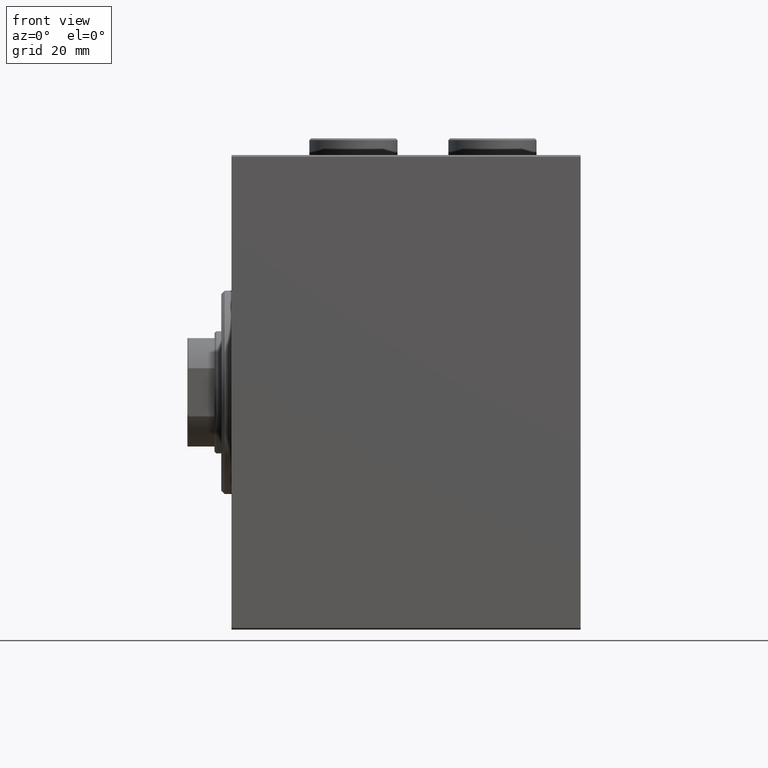
[diagram: clean part render]
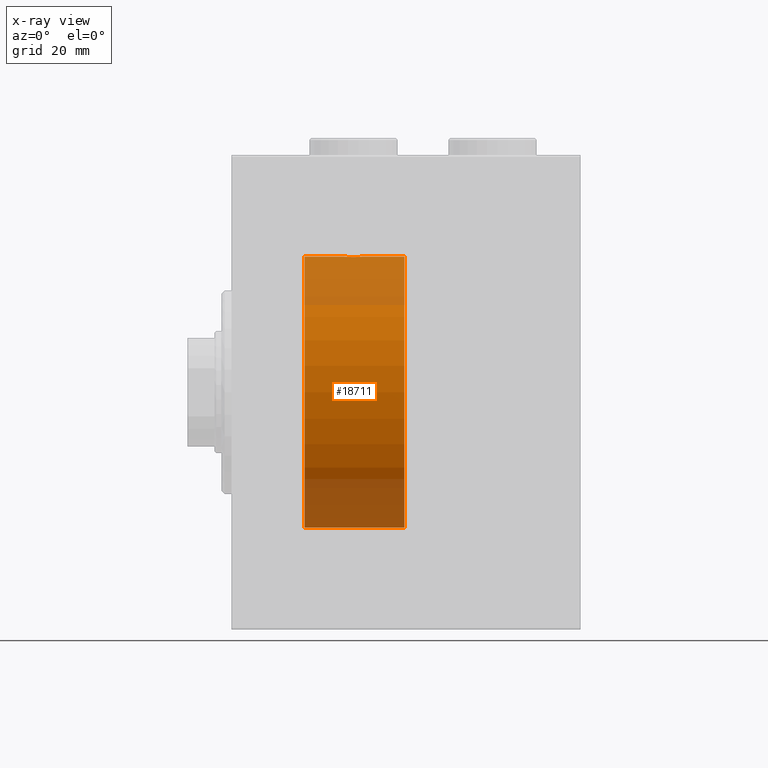
[diagram: x-ray — body ghosted, one internal face saturated and labeled with its STEP entity id]
A machine part, front view, then the same camera in x-ray: the body is ghosted and one INTERNAL B-rep face — a face not visible from any outside direction — is saturated and labeled: STEP entity #18711.
In plain terms, the highlighted cylindrical surface (partial cylindrical patch) has radius 40 mm, axis along (-1, -0, -0).
Its self-contained STEP definition (entity closure, byte-faithful):
#464 = CARTESIAN_POINT ( 'NONE',  ( 37.50443082913466242, -2.602909538701748016, -39.91537030566259148 ) ) ;
#1314 = CARTESIAN_POINT ( 'NONE',  ( 38.26097616994740491, -1.981471132463162643, -39.95113231465139592 ) ) ;
#1762 = CARTESIAN_POINT ( 'NONE',  ( 38.99999999999999289, -0.1957844162750510819, -40.00000000000000711 ) ) ;
#1984 = CARTESIAN_POINT ( 'NONE',  ( 36.77869523415743913, -2.903766417398228938, -39.89448096967571900 ) ) ;
#2025 = CARTESIAN_POINT ( 'NONE',  ( 36.77455678826340346, -2.904869018727227470, 39.89440043036668726 ) ) ;
#2202 = CARTESIAN_POINT ( 'NONE',  ( 34.01863720485770415, -2.261082456166700005, -39.93628274425758917 ) ) ;
#2249 = CARTESIAN_POINT ( 'NONE',  ( 35.03061658105534093, -2.845855236045346626, 39.89870693240651178 ) ) ;
#2471 = CARTESIAN_POINT ( 'NONE',  ( 35.22130476584258219, -2.903766417398241373, 39.89448096967571189 ) ) ;
#2582 = VERTEX_POINT ( 'NONE', #28784 ) ;
#2657 = CARTESIAN_POINT ( 'NONE',  ( 51.00000000000000711, 0.000000000000000000, 40.00000000000000000 ) ) ;
#2660 = CARTESIAN_POINT ( 'NONE',  ( 33.07973825008353685, -0.7903958539027382546, -39.99381900068937767 ) ) ;
#2885 = CARTESIAN_POINT ( 'NONE',  ( 34.49911531595966352, -2.604941918888306507, -39.91523680494982784 ) ) ;
#2931 = CARTESIAN_POINT ( 'NONE',  ( 36.39109692509332916, -2.980812880639903906, 39.88879797994688658 ) ) ;
#2981 = AXIS2_PLACEMENT_3D ( 'NONE', #45157, #10168, #17310 ) ;
#3366 = VECTOR ( 'NONE', #22889, 1000.000000000000000 ) ;
#4565 = CARTESIAN_POINT ( 'NONE',  ( 33.30278659419118981, -1.327859336864149364, 39.97836169682016561 ) ) ;
#4980 = CARTESIAN_POINT ( 'NONE',  ( 38.69721340580881730, -1.327859336864144035, -39.97836169682019403 ) ) ;
#5428 = CARTESIAN_POINT ( 'NONE',  ( 37.83044822822401443, -2.384933850258100119, -39.92898715513241115 ) ) ;
#5478 = CARTESIAN_POINT ( 'NONE',  ( 38.38251680911463382, -1.833695109615725904, 39.95828327492363741 ) ) ;
#5693 = CARTESIAN_POINT ( 'NONE',  ( 37.82690184632409824, -2.387636253591825408, 39.92882473497732576 ) ) ;
#6346 = CARTESIAN_POINT ( 'NONE',  ( 33.74170329679496660, -1.984537326394300250, -39.95097977400577349 ) ) ;
#6649 = EDGE_CURVE ( 'NONE', #13104, #43262, #32824, .T. ) ;
#7179 = CYLINDRICAL_SURFACE ( 'NONE', #2981, 40.00000000000000000 ) ;
#7967 = ORIENTED_EDGE ( 'NONE', *, *, #6649, .T. ) ;
#8018 = CARTESIAN_POINT ( 'NONE',  ( 33.01898122889073761, -0.3904143323715978386, 39.99856256910221219 ) ) ;
#8127 = LINE ( 'NONE', #11819, #36804 ) ;
#9157 = CARTESIAN_POINT ( 'NONE',  ( 39.00000000000000000, -0.3964922677423686759, 40.00000000000000000 ) ) ;
#9159 = CARTESIAN_POINT ( 'NONE',  ( 51.00000000000000711, 0.000000000000000000, 0.000000000000000000 ) ) ;
#10168 = DIRECTION ( 'NONE',  ( -1.000000000000000000, -0.000000000000000000, -0.000000000000000000 ) ) ;
#10630 = FACE_OUTER_BOUND ( 'NONE', #43345, .T. ) ;
#11626 = LINE ( 'NONE', #33245, #32344 ) ;
#11819 = CARTESIAN_POINT ( 'NONE',  ( 51.00000000000000711, 0.000000000000000000, 40.00000000000000000 ) ) ;
#11900 = EDGE_CURVE ( 'NONE', #13340, #31740, #36004, .T. ) ;
#11930 = DIRECTION ( 'NONE',  ( 0.000000000000000000, 0.000000000000000000, 1.000000000000000000 ) ) ;
#12069 = CARTESIAN_POINT ( 'NONE',  ( 51.00000000000000711, 0.000000000000000000, 40.00000000000000000 ) ) ;
#12375 = DIRECTION ( 'NONE',  ( -1.000000000000000000, 0.000000000000000000, 0.000000000000000000 ) ) ;
#12550 = CARTESIAN_POINT ( 'NONE',  ( 38.84665273013138176, -0.9668189122103333366, -39.98872185468385254 ) ) ;
#12600 = CARTESIAN_POINT ( 'NONE',  ( 21.60000000000000142, 4.898587196589413026E-15, -40.00000000000000000 ) ) ;
#12775 = CARTESIAN_POINT ( 'NONE',  ( 34.17309815367588754, -2.387636253591812974, -39.92882473497732576 ) ) ;
#13050 = CARTESIAN_POINT ( 'NONE',  ( 38.60188728128492386, -1.506322235190791226, 39.97196309111975410 ) ) ;
#13104 = VERTEX_POINT ( 'NONE', #35328 ) ;
#13262 = CARTESIAN_POINT ( 'NONE',  ( 39.00000000000000000, -4.750840494920854782E-16, 40.00000000000000000 ) ) ;
#13286 = CARTESIAN_POINT ( 'NONE',  ( 37.98136279514228875, -2.261082456166712440, 39.93628274425758207 ) ) ;
#13340 = VERTEX_POINT ( 'NONE', #39915 ) ;
#14030 = VERTEX_POINT ( 'NONE', #23896 ) ;
#14920 = CARTESIAN_POINT ( 'NONE',  ( 32.99999999999998579, -0.1957844162750546346, 39.99999999999999289 ) ) ;
#15334 = CARTESIAN_POINT ( 'NONE',  ( 35.80439468926913804, -3.000157693440631324, -39.88732948994960026 ) ) ;
#16008 = CARTESIAN_POINT ( 'NONE',  ( 36.39522483453576029, -2.980272303779541332, -39.88883864243169342 ) ) ;
#16511 = CARTESIAN_POINT ( 'NONE',  ( 36.19560531073085485, -3.000157693440645090, 39.88732948994960026 ) ) ;
#16589 = CARTESIAN_POINT ( 'NONE',  ( 51.00000000000000711, 4.898587196589413026E-15, -40.00000000000000000 ) ) ;
#16738 = CARTESIAN_POINT ( 'NONE',  ( 33.73902383005257377, -1.981471132463168638, 39.95113231465138881 ) ) ;
#16966 = CARTESIAN_POINT ( 'NONE',  ( 37.32853644746295885, -2.696981015661930936, 39.90904630908467254 ) ) ;
#17310 = DIRECTION ( 'NONE',  ( 0.000000000000000000, 0.000000000000000000, 1.000000000000000000 ) ) ;
#17361 = EDGE_CURVE ( 'NONE', #13340, #2582, #11626, .T. ) ;
#17442 = ORIENTED_EDGE ( 'NONE', *, *, #17361, .T. ) ;
#18107 = CIRCLE ( 'NONE', #40696, 40.00000000000000000 ) ;
#18483 = EDGE_CURVE ( 'NONE', #31740, #43262, #8127, .T. ) ;
#18604 = CARTESIAN_POINT ( 'NONE',  ( 33.39566400087915099, -1.502129635934003948, 39.97212271185185983 ) ) ;
#18711 = ADVANCED_FACE ( 'NONE', ( #10630 ), #7179, .F. ) ;
#18972 = CARTESIAN_POINT ( 'NONE',  ( 32.99999999999999289, 4.605585004310627937E-15, -40.00000000000000000 ) ) ;
#19021 = CARTESIAN_POINT ( 'NONE',  ( 38.98101877110926239, -0.3904143323715931757, -39.99856256910221219 ) ) ;
#19520 = CARTESIAN_POINT ( 'NONE',  ( 38.69537007708435539, -1.331594428131646302, 39.97823692017208685 ) ) ;
#20426 = CARTESIAN_POINT ( 'NONE',  ( 34.01538552187719233, -2.258217541132904849, 39.93644519243652979 ) ) ;
#20670 = DIRECTION ( 'NONE',  ( -1.000000000000000000, 0.000000000000000000, 0.000000000000000000 ) ) ;
#21721 = ORIENTED_EDGE ( 'NONE', *, *, #11900, .F. ) ;
#22068 = CARTESIAN_POINT ( 'NONE',  ( 33.09574826348647036, -0.7773146824711030245, 39.99291453282344833 ) ) ;
#22499 = CARTESIAN_POINT ( 'NONE',  ( 39.00000000000000000, 4.898587181754971267E-15, -40.00000000000000000 ) ) ;
#22889 = DIRECTION ( 'NONE',  ( -1.000000000000000000, -0.000000000000000000, -0.000000000000000000 ) ) ;
#22934 = CARTESIAN_POINT ( 'NONE',  ( 38.60433599912083480, -1.502129635934000396, -39.97212271185185273 ) ) ;
#23154 = CARTESIAN_POINT ( 'NONE',  ( 36.96938341894465907, -2.845855236045336856, -39.89870693240651178 ) ) ;
#23841 = CARTESIAN_POINT ( 'NONE',  ( 35.03510674146484405, -2.847401743820449305, -39.89859630624607689 ) ) ;
#23896 = CARTESIAN_POINT ( 'NONE',  ( 21.60000000000000142, 0.000000000000000000, 40.00000000000000000 ) ) ;
#25660 = DIRECTION ( 'NONE',  ( -1.000000000000000000, -0.000000000000000000, -0.000000000000000000 ) ) ;
#25848 = DIRECTION ( 'NONE',  ( -1.000000000000000000, -0.000000000000000000, -0.000000000000000000 ) ) ;
#26629 = CARTESIAN_POINT ( 'NONE',  ( 21.60000000000000142, 0.000000000000000000, 0.000000000000000000 ) ) ;
#27323 = CARTESIAN_POINT ( 'NONE',  ( 39.00000000000000000, -4.750840494920854782E-16, 40.00000000000000000 ) ) ;
#28008 = EDGE_CURVE ( 'NONE', #2582, #35648, #39237, .T. ) ;
#28784 = CARTESIAN_POINT ( 'NONE',  ( 39.00000000000000000, 4.898587181754971267E-15, -40.00000000000000000 ) ) ;
#29355 = ORIENTED_EDGE ( 'NONE', *, *, #35502, .F. ) ;
#29554 = EDGE_CURVE ( 'NONE', #35648, #30727, #34080, .T. ) ;
#30043 = CARTESIAN_POINT ( 'NONE',  ( 36.20041286019198168, -2.999840380514735116, -39.88735335562824957 ) ) ;
#30090 = CARTESIAN_POINT ( 'NONE',  ( 38.92026174991647736, -0.7903958539027412522, 39.99381900068937057 ) ) ;
#30502 = CARTESIAN_POINT ( 'NONE',  ( 33.61748319088535908, -1.833695109615714802, -39.95828327492363741 ) ) ;
#30549 = CARTESIAN_POINT ( 'NONE',  ( 35.79958713980801832, -2.999840380514748883, 39.88735335562824957 ) ) ;
#30727 = VERTEX_POINT ( 'NONE', #12600 ) ;
#30774 = CARTESIAN_POINT ( 'NONE',  ( 34.49556917086534469, -2.602909538701760450, 39.91537030566259148 ) ) ;
#30958 = CARTESIAN_POINT ( 'NONE',  ( 34.67146355253704826, -2.696981015661917613, -39.90904630908468675 ) ) ;
#30999 = CARTESIAN_POINT ( 'NONE',  ( 33.61492399084645655, -1.830402106103517834, 39.95843610133493229 ) ) ;
#31477 = ORIENTED_EDGE ( 'NONE', *, *, #28008, .T. ) ;
#31740 = VERTEX_POINT ( 'NONE', #2657 ) ;
#31861 = ORIENTED_EDGE ( 'NONE', *, *, #18483, .F. ) ;
#32344 = VECTOR ( 'NONE', #25660, 1000.000000000000000 ) ;
#32824 = B_SPLINE_CURVE_WITH_KNOTS ( 'NONE', 3,
 ( #40471, #14920, #8018, #22068, #36107, #4565, #18604, #30999, #16738, #20426, #41377, #30774, #34457, #2249, #2471, #37696, #30549, #16511, #2931, #2025, #44590, #16966, #45048, #5693, #13286, #44827, #5478, #13050, #19520, #30090, #9157, #27323 ),
 .UNSPECIFIED., .F., .F.,
 ( 4, 2, 2, 2, 2, 2, 2, 2, 2, 2, 2, 2, 2, 2, 2, 4 ),
 ( 0.009382660366305094896, 0.009968941372944132434, 0.01055522237958316824, 0.01114150338622220404, 0.01172778439286124158, 0.01231406539950027912, 0.01290034640613931492, 0.01348662741277835073, 0.01407290841941738826, 0.01465918942605642580, 0.01524547043269546161, 0.01583175143933449741, 0.01641803244597353495, 0.01700431345261257249, 0.01759059445925161003, 0.01876315647252968163 ),
 .UNSPECIFIED. ) ;
#33245 = CARTESIAN_POINT ( 'NONE',  ( 51.00000000000000711, 4.898587196589413026E-15, -40.00000000000000000 ) ) ;
#33507 = CARTESIAN_POINT ( 'NONE',  ( 37.33224268865864559, -2.695129988695729839, -39.90917164320280364 ) ) ;
#34080 = LINE ( 'NONE', #16589, #42136 ) ;
#34457 = CARTESIAN_POINT ( 'NONE',  ( 34.66775731134134730, -2.695129988695740053, 39.90917164320281785 ) ) ;
#35328 = CARTESIAN_POINT ( 'NONE',  ( 32.99999999999999289, -1.483452932268112700E-23, 40.00000000000000000 ) ) ;
#35502 = EDGE_CURVE ( 'NONE', #13104, #14030, #36015, .T. ) ;
#35648 = VERTEX_POINT ( 'NONE', #18972 ) ;
#35675 = CARTESIAN_POINT ( 'NONE',  ( 35.22544321173658943, -2.904869018727217700, -39.89440043036668726 ) ) ;
#36004 = CIRCLE ( 'NONE', #38222, 40.00000000000000000 ) ;
#36015 = LINE ( 'NONE', #12069, #3366 ) ;
#36107 = CARTESIAN_POINT ( 'NONE',  ( 33.15334726986859692, -0.9668189122103379995, 39.98872185468384544 ) ) ;
#36804 = VECTOR ( 'NONE', #25848, 1000.000000000000000 ) ;
#36968 = CARTESIAN_POINT ( 'NONE',  ( 38.38507600915353635, -1.830402106103512505, -39.95843610133493229 ) ) ;
#37562 = ORIENTED_EDGE ( 'NONE', *, *, #38452, .T. ) ;
#37648 = CARTESIAN_POINT ( 'NONE',  ( 32.99999999999999289, 4.605585004310627937E-15, -40.00000000000000000 ) ) ;
#37696 = CARTESIAN_POINT ( 'NONE',  ( 35.60477516546423260, -2.980272303779554210, 39.88883864243167920 ) ) ;
#37884 = CARTESIAN_POINT ( 'NONE',  ( 33.30462992291564461, -1.331594428131640528, -39.97823692017208685 ) ) ;
#38222 = AXIS2_PLACEMENT_3D ( 'NONE', #9159, #20670, #44829 ) ;
#38452 = EDGE_CURVE ( 'NONE', #30727, #14030, #18107, .T. ) ;
#39237 = B_SPLINE_CURVE_WITH_KNOTS ( 'NONE', 3,
 ( #22499, #1762, #19021, #44094, #12550, #4980, #22934, #36968, #1314, #40641, #5428, #464, #33507, #23154, #1984, #16008, #30043, #15334, #42570, #35675, #23841, #30958, #2885, #12775, #2202, #6346, #30502, #41100, #37884, #2660, #41331, #37648 ),
 .UNSPECIFIED., .F., .F.,
 ( 4, 2, 2, 2, 2, 2, 2, 2, 2, 2, 2, 2, 2, 2, 2, 4 ),
 ( 0.009382660366305110508, 0.009968941372944146312, 0.01055522237958318212, 0.01114150338622221792, 0.01172778439286125372, 0.01231406539950028953, 0.01290034640613932533, 0.01348662741277836113, 0.01407290841941739694, 0.01465918942605643274, 0.01524547043269546855, 0.01583175143933450435, 0.01641803244597354189, 0.01700431345261257596, 0.01759059445925161003, 0.01876315647252968163 ),
 .UNSPECIFIED. ) ;
#39915 = CARTESIAN_POINT ( 'NONE',  ( 51.00000000000000711, 4.898587196589413026E-15, -40.00000000000000000 ) ) ;
#40471 = CARTESIAN_POINT ( 'NONE',  ( 32.99999999999999289, -1.483452932268112700E-23, 40.00000000000000000 ) ) ;
#40641 = CARTESIAN_POINT ( 'NONE',  ( 37.98461447812278635, -2.258217541132897743, -39.93644519243654400 ) ) ;
#40696 = AXIS2_PLACEMENT_3D ( 'NONE', #26629, #12375, #11930 ) ;
#41100 = CARTESIAN_POINT ( 'NONE',  ( 33.39811271871507614, -1.506322235190781456, -39.97196309111974699 ) ) ;
#41331 = CARTESIAN_POINT ( 'NONE',  ( 32.99999999999998579, -0.3964922677423637909, -39.99999999999998579 ) ) ;
#41377 = CARTESIAN_POINT ( 'NONE',  ( 34.16955177177597847, -2.384933850258112553, 39.92898715513240404 ) ) ;
#42136 = VECTOR ( 'NONE', #44665, 1000.000000000000000 ) ;
#42570 = CARTESIAN_POINT ( 'NONE',  ( 35.60890307490667794, -2.980812880639892359, -39.88879797994688658 ) ) ;
#43262 = VERTEX_POINT ( 'NONE', #13262 ) ;
#43345 = EDGE_LOOP ( 'NONE', ( #21721, #17442, #31477, #45073, #37562, #29355, #7967, #31861 ) ) ;
#44094 = CARTESIAN_POINT ( 'NONE',  ( 38.90425173651351543, -0.7773146824710984726, -39.99291453282344122 ) ) ;
#44590 = CARTESIAN_POINT ( 'NONE',  ( 36.96489325853514885, -2.847401743820463516, 39.89859630624608400 ) ) ;
#44665 = DIRECTION ( 'NONE',  ( -1.000000000000000000, -0.000000000000000000, -0.000000000000000000 ) ) ;
#44827 = CARTESIAN_POINT ( 'NONE',  ( 38.25829670320502629, -1.984537326394312018, 39.95097977400578060 ) ) ;
#44829 = DIRECTION ( 'NONE',  ( 0.000000000000000000, 0.000000000000000000, 1.000000000000000000 ) ) ;
#45048 = CARTESIAN_POINT ( 'NONE',  ( 37.50088468404034359, -2.604941918888319385, 39.91523680494982784 ) ) ;
#45073 = ORIENTED_EDGE ( 'NONE', *, *, #29554, .T. ) ;
#45157 = CARTESIAN_POINT ( 'NONE',  ( 51.00000000000000711, 0.000000000000000000, 0.000000000000000000 ) ) ;